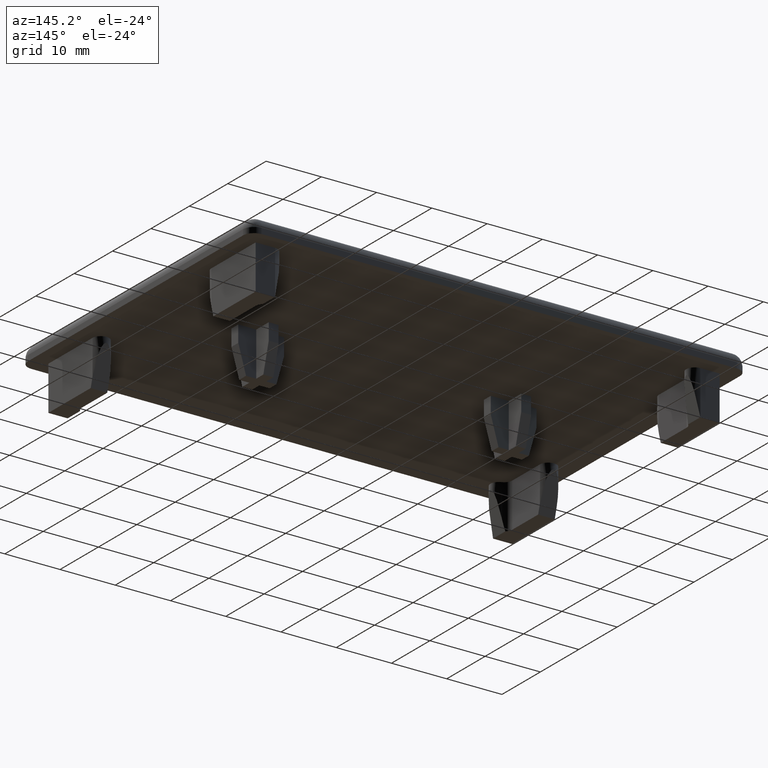
[diagram: clean part render]
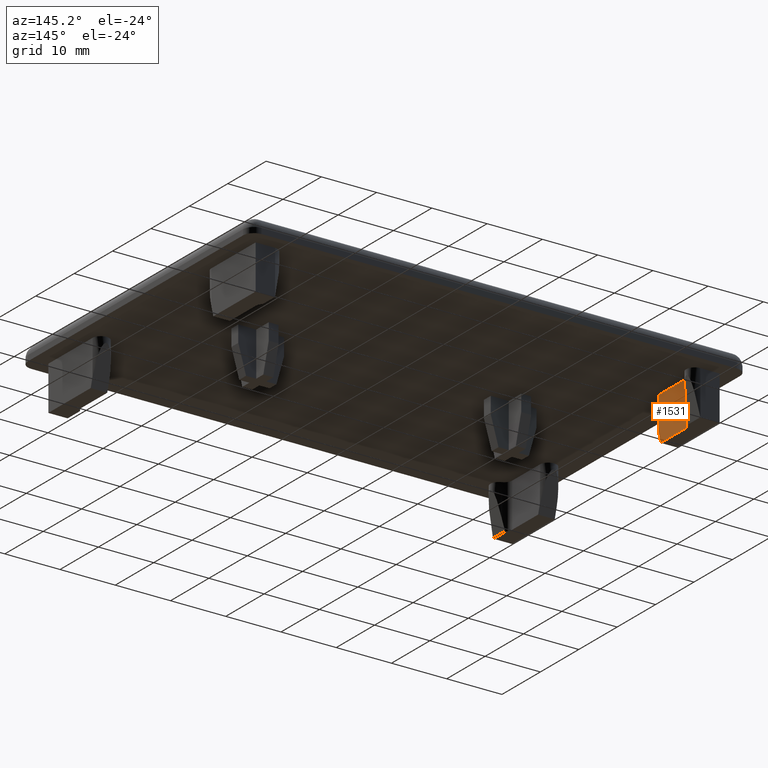
[diagram: same view with one face highlighted and labeled with its STEP entity id]
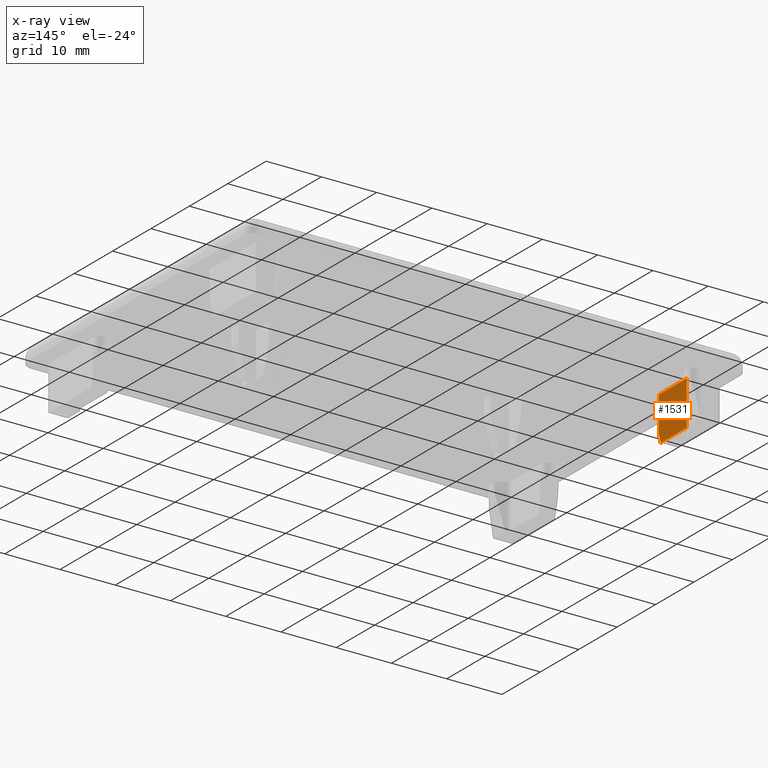
[diagram: x-ray of the same camera — body ghosted, the highlighted face saturated]
A machine part, auxiliary view. The second image highlights one B-rep face of the part: STEP entity #1531.
The next image is the same camera in x-ray: the body ghosted, the highlighted face saturated — about 0% of this face is hidden behind the body in this view.
In plain terms, the highlighted planar face has unit normal (1, 0, 0).
Its self-contained STEP definition (entity closure, byte-faithful):
#97=FACE_OUTER_BOUND('',#185,.T.);
#185=EDGE_LOOP('',(#1089,#1090,#1091,#1092,#1093));
#298=LINE('',#2250,#478);
#339=LINE('',#2338,#519);
#340=LINE('',#2340,#520);
#341=LINE('',#2342,#521);
#342=LINE('',#2343,#522);
#478=VECTOR('',#1784,1.70604208384116);
#519=VECTOR('',#1857,6.71157287525378);
#520=VECTOR('',#1858,8.);
#521=VECTOR('',#1859,7.17157287525382);
#522=VECTOR('',#1860,6.35714285714276);
#661=VERTEX_POINT('',#2247);
#662=VERTEX_POINT('',#2249);
#693=VERTEX_POINT('',#2337);
#694=VERTEX_POINT('',#2339);
#695=VERTEX_POINT('',#2341);
#805=EDGE_CURVE('',#662,#661,#298,.T.);
#849=EDGE_CURVE('',#693,#661,#339,.T.);
#850=EDGE_CURVE('',#694,#693,#340,.T.);
#851=EDGE_CURVE('',#695,#694,#341,.T.);
#852=EDGE_CURVE('',#695,#662,#342,.T.);
#1089=ORIENTED_EDGE('',*,*,#805,.T.);
#1090=ORIENTED_EDGE('',*,*,#849,.F.);
#1091=ORIENTED_EDGE('',*,*,#850,.F.);
#1092=ORIENTED_EDGE('',*,*,#851,.F.);
#1093=ORIENTED_EDGE('',*,*,#852,.T.);
#1466=PLANE('',#1627);
#1531=ADVANCED_FACE('',(#97),#1466,.T.);
#1627=AXIS2_PLACEMENT_3D('',#2336,#1855,#1856);
#1784=DIRECTION('',(0.,0.269629925519974,-0.962964019714181));
#1855=DIRECTION('center_axis',(1.,0.,0.));
#1856=DIRECTION('ref_axis',(0.,-1.,0.));
#1857=DIRECTION('',(0.,-1.,0.));
#1858=DIRECTION('',(0.,0.,-1.));
#1859=DIRECTION('',(0.,1.,0.));
#1860=DIRECTION('',(0.,0.,-1.));
#2247=CARTESIAN_POINT('',(-39.,15.96,-8.));
#2249=CARTESIAN_POINT('',(-39.,15.5,-6.35714285714276));
#2250=CARTESIAN_POINT('',(-39.,15.165391002142,-5.16211072193578));
#2336=CARTESIAN_POINT('Origin',(-39.,22.6715728752538,0.));
#2337=CARTESIAN_POINT('',(-39.,22.6715728752538,-8.));
#2338=CARTESIAN_POINT('',(-39.,22.6715728752538,-8.));
#2339=CARTESIAN_POINT('',(-39.,22.6715728752538,0.));
#2340=CARTESIAN_POINT('',(-39.,22.6715728752538,0.));
#2341=CARTESIAN_POINT('',(-39.,15.5,0.));
#2342=CARTESIAN_POINT('',(-39.,11.3357864376269,0.));
#2343=CARTESIAN_POINT('',(-39.,15.5,0.));